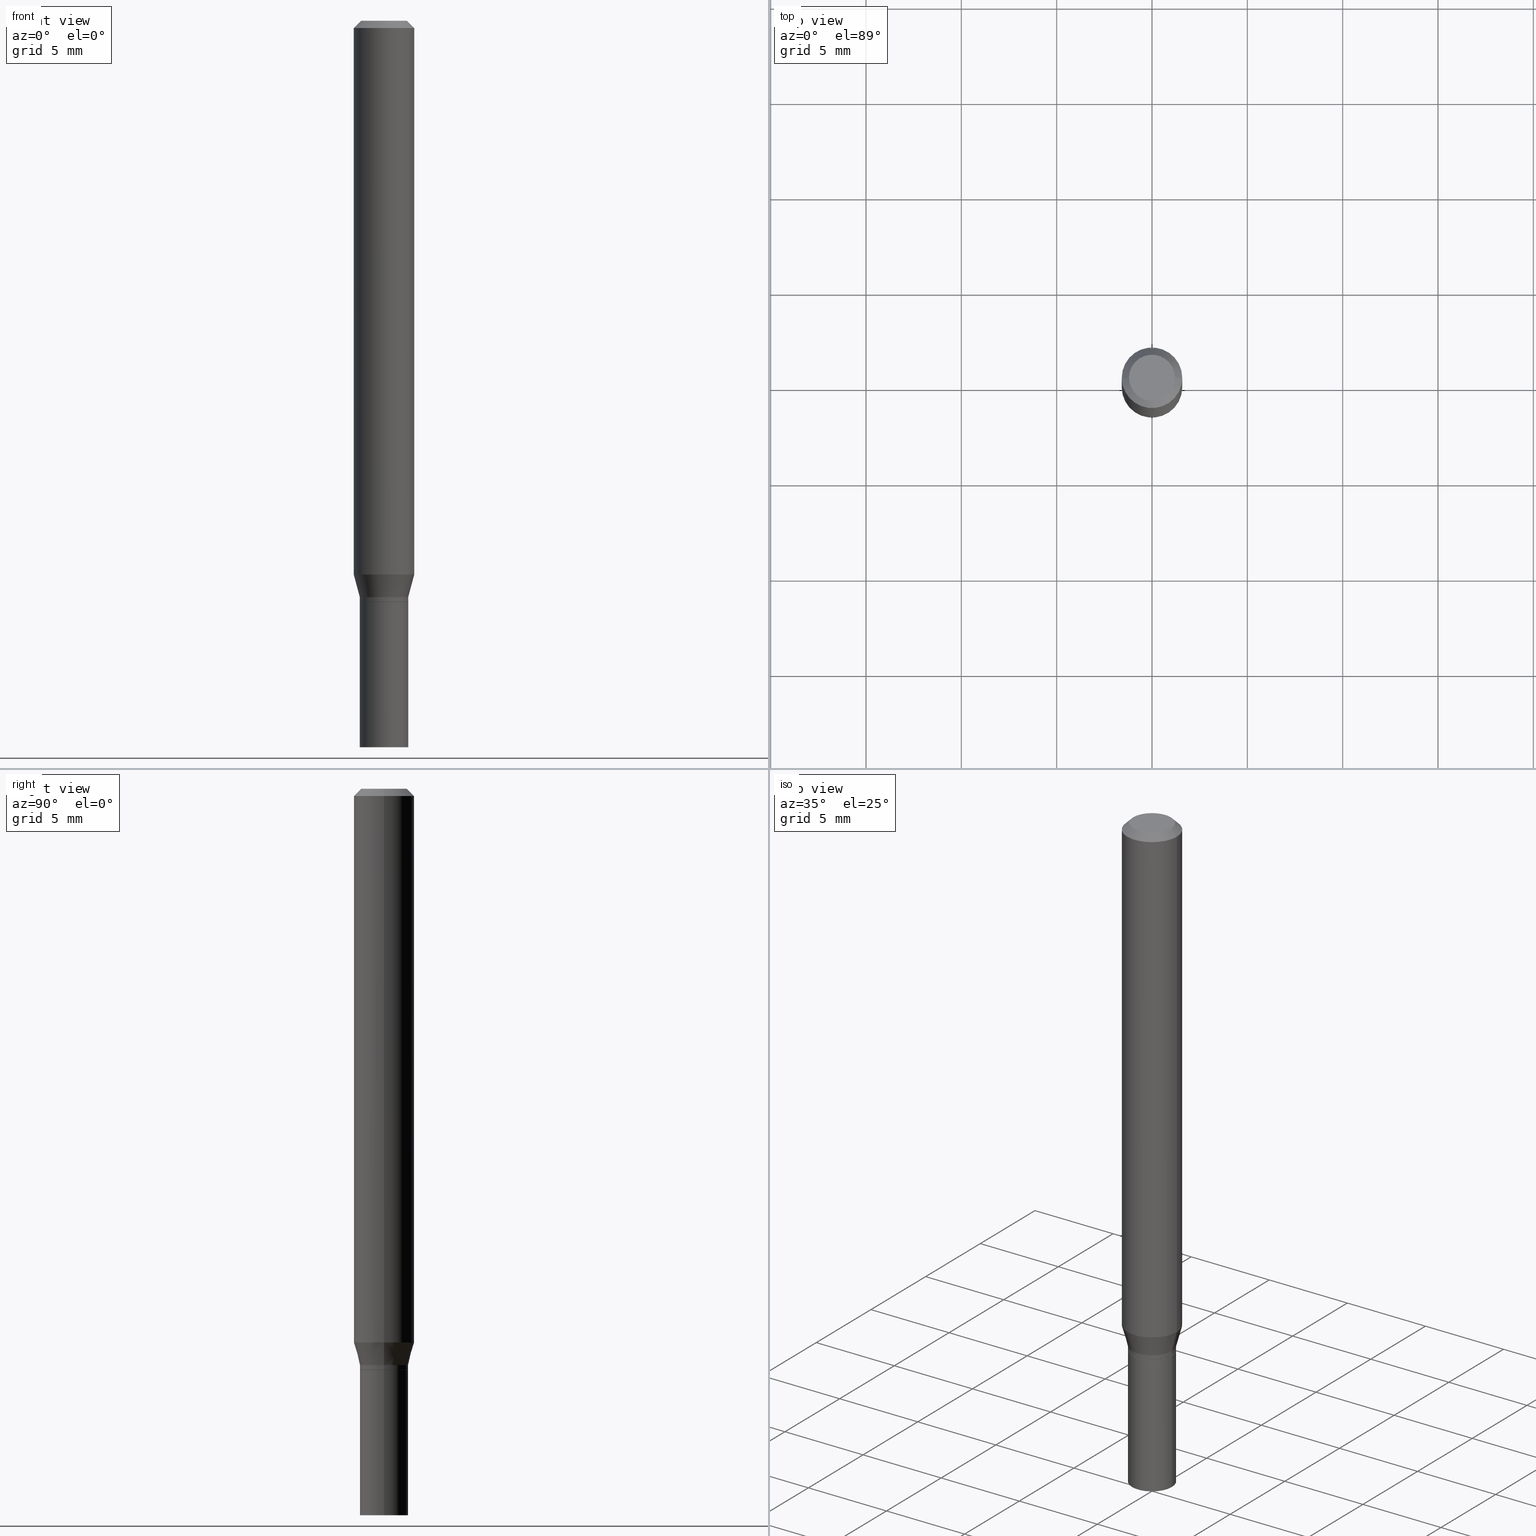
[diagram: canonical four-view strip — front | top / right | iso, engineering-drawing reading convention]
A machine part, canonical four-view strip (front | top / right | iso — engineering-drawing reading convention). The complete STEP part file that produces these views, byte-faithful:
ISO-10303-21;
HEADER;
FILE_DESCRIPTION (( 'STEP AP203' ),
    '1' );
FILE_NAME ('02465.STEP',
    '2024-03-18T20:45:37',
    ( '' ),
    ( '' ),
    'SwSTEP 2.0',
    'SolidWorks 2023',
    '' );
FILE_SCHEMA (( 'CONFIG_CONTROL_DESIGN' ));
ENDSEC;

DATA;
#1 = LOCAL_TIME ( 16, 45, 37.00000000000000000, #456 ) ;
#2 = PERSON_AND_ORGANIZATION ( #294, #120 ) ;
#3 = UNCERTAINTY_MEASURE_WITH_UNIT (LENGTH_MEASURE( 1.000000000000000082E-05 ), #350, 'distance_accuracy_value', 'NONE');
#4 = DIRECTION ( 'NONE',  ( -2.445468806185136597E-29, 3.491481338843145583E-15, 1.000000000000000000 ) ) ;
#5 = APPLICATION_CONTEXT ( 'configuration controlled 3d designs of mechanical parts and assemblies' ) ;
#6 = DIRECTION ( 'NONE',  ( 1.000000000000000000, -6.982962677686266711E-15, 0.000000000000000000 ) ) ;
#7 = PRODUCT_DEFINITION ( 'UNKNOWN', '', #165, #320 ) ;
#8 = CARTESIAN_POINT ( 'NONE',  ( -0.05000000000000005829, -3.799591425343292957E-15, -1.190000000000000169 ) ) ;
#9 = AXIS2_PLACEMENT_3D ( 'NONE', #137, #461, #353 ) ;
#10 = PLANE ( 'NONE',  #359 ) ;
#11 = EDGE_CURVE ( 'NONE', #435, #424, #64, .T. ) ;
#12 = DIRECTION ( 'NONE',  ( 2.445468806185136597E-29, -3.491481338843145583E-15, -1.000000000000000000 ) ) ;
#13 = ORIENTED_EDGE ( 'NONE', *, *, #277, .F. ) ;
#14 = CARTESIAN_POINT ( 'NONE',  ( -0.05000000000000000278, 3.552713678800501127E-16, -2.459467545127453311E-30 ) ) ;
#15 = VERTEX_POINT ( 'NONE', #168 ) ;
#16 = AXIS2_PLACEMENT_3D ( 'NONE', #216, #361, #289 ) ;
#17 = DIRECTION ( 'NONE',  ( 1.000000000000000000, -6.982962677686266711E-15, 0.000000000000000000 ) ) ;
#18 = AXIS2_PLACEMENT_3D ( 'NONE', #201, #298, #299 ) ;
#19 = EDGE_LOOP ( 'NONE', ( #393, #374, #86, #264 ) ) ;
#20 = DIRECTION ( 'NONE',  ( -1.000000000000000000, 6.982962677686265922E-15, -4.876176775795935793E-29 ) ) ;
#21 = CC_DESIGN_DATE_AND_TIME_ASSIGNMENT ( #161, #308, ( #7 ) ) ;
#22 = ORIENTED_EDGE ( 'NONE', *, *, #91, .F. ) ;
#23 = CALENDAR_DATE ( 2024, 18, 3 ) ;
#24 = FACE_OUTER_BOUND ( 'NONE', #349, .T. ) ;
#25 = ORIENTED_EDGE ( 'NONE', *, *, #214, .T. ) ;
#26 = CONICAL_SURFACE ( 'NONE', #303, 0.06250000000000000000, 0.7853981633974456145 ) ;
#27 = LOCAL_TIME ( 16, 45, 37.00000000000000000, #106 ) ;
#28 = ORIENTED_EDGE ( 'NONE', *, *, #377, .F. ) ;
#29 = EDGE_CURVE ( 'NONE', #155, #178, #462, .T. ) ;
#30 = PERSON_AND_ORGANIZATION ( #294, #120 ) ;
#31 = CARTESIAN_POINT ( 'NONE',  ( 0.04950000000000000233, -4.535434259157245343E-15, -1.200000000000000178 ) ) ;
#32 = APPLICATION_PROTOCOL_DEFINITION ( 'international standard', 'config_control_design', 1994, #263 ) ;
#33 = DIRECTION ( 'NONE',  ( 1.000000000000000000, -6.982962677686267499E-15, 4.884662768193073002E-29 ) ) ;
#34 = COORDINATED_UNIVERSAL_TIME_OFFSET ( 5, 0, .BEHIND. ) ;
#35 = DIRECTION ( 'NONE',  ( 1.000000000000000000, -6.982962677686270655E-15, 0.000000000000000000 ) ) ;
#36 = AXIS2_PLACEMENT_3D ( 'NONE', #121, #342, #17 ) ;
#37 = DIRECTION ( 'NONE',  ( -1.000000000000000000, 6.982962677686265922E-15, -4.876176775795935793E-29 ) ) ;
#38 = CYLINDRICAL_SURFACE ( 'NONE', #410, 0.06250000000000000000 ) ;
#39 = LINE ( 'NONE', #187, #53 ) ;
#40 = ADVANCED_FACE ( 'NONE', ( #62 ), #246, .F. ) ;
#41 = DIRECTION ( 'NONE',  ( -2.445468806185136597E-29, 3.491481338843145583E-15, 1.000000000000000000 ) ) ;
#42 = CC_DESIGN_PERSON_AND_ORGANIZATION_ASSIGNMENT ( #443, #143, ( #165 ) ) ;
#43 = FACE_OUTER_BOUND ( 'NONE', #309, .T. ) ;
#44 = EDGE_CURVE ( 'NONE', #152, #78, #46, .T. ) ;
#45 = DIRECTION ( 'NONE',  ( -2.438088387897960049E-29, 3.491481338843145188E-15, 1.000000000000000000 ) ) ;
#46 = CIRCLE ( 'NONE', #302, 0.06250000000000000000 ) ;
#47 = DIRECTION ( 'NONE',  ( 1.000000000000000000, -6.982962677686267499E-15, 4.876176775795936353E-29 ) ) ;
#48 = FACE_OUTER_BOUND ( 'NONE', #195, .T. ) ;
#49 = VERTEX_POINT ( 'NONE', #31 ) ;
#50 = CARTESIAN_POINT ( 'NONE',  ( 0.000000000000000000, 0.000000000000000000, 0.000000000000000000 ) ) ;
#51 = ORIENTED_EDGE ( 'NONE', *, *, #460, .T. ) ;
#52 = EDGE_CURVE ( 'NONE', #178, #155, #227, .T. ) ;
#53 = VECTOR ( 'NONE', #179, 39.37007874015748143 ) ;
#54 = PLANE ( 'NONE',  #72 ) ;
#55 = ORIENTED_EDGE ( 'NONE', *, *, #405, .F. ) ;
#56 = DIRECTION ( 'NONE',  ( -2.438088387897960049E-29, 3.491481338843145188E-15, 1.000000000000000000 ) ) ;
#57 = ORIENTED_EDGE ( 'NONE', *, *, #11, .F. ) ;
#58 = CC_DESIGN_PERSON_AND_ORGANIZATION_ASSIGNMENT ( #140, #286, ( #105 ) ) ;
#59 = APPLICATION_PROTOCOL_DEFINITION ( 'international standard', 'config_control_design', 1994, #5 ) ;
#60 = CARTESIAN_POINT ( 'NONE',  ( -2.107530995056288845E-45, 3.008995707351289501E-31, 8.618106228653878303E-17 ) ) ;
#61 =( GEOMETRIC_REPRESENTATION_CONTEXT ( 3 ) GLOBAL_UNCERTAINTY_ASSIGNED_CONTEXT ( ( #3 ) ) GLOBAL_UNIT_ASSIGNED_CONTEXT ( ( #350, #313, #392 ) ) REPRESENTATION_CONTEXT ( 'NONE', 'WORKASPACE' ) );
#62 = FACE_OUTER_BOUND ( 'NONE', #92, .T. ) ;
#63 = PERSON_AND_ORGANIZATION_ROLE ( 'creator' ) ;
#64 = LINE ( 'NONE', #134, #275 ) ;
#65 = CLOSED_SHELL ( 'NONE', ( #297, #341, #261, #241, #272, #124, #153, #348, #40, #84, #436, #191 ) ) ;
#66 = AXIS2_PLACEMENT_3D ( 'NONE', #279, #384, #163 ) ;
#67 = CARTESIAN_POINT ( 'NONE',  ( 2.910107879360313156E-29, -4.154862793223344154E-15, -1.190000000000000169 ) ) ;
#68 = CALENDAR_DATE ( 2024, 18, 3 ) ;
#69 = DIRECTION ( 'NONE',  ( 0.7071067811865454633, -7.319954787623246579E-15, -0.7071067811865493491 ) ) ;
#70 = EDGE_CURVE ( 'NONE', #97, #193, #401, .T. ) ;
#71 = FACE_OUTER_BOUND ( 'NONE', #176, .T. ) ;
#72 = AXIS2_PLACEMENT_3D ( 'NONE', #199, #345, #20 ) ;
#73 = MANIFOLD_SOLID_BREP ( 'Body-Move/Copy2[2]', #65 ) ;
#74 = APPROVAL_STATUS ( 'not_yet_approved' ) ;
#75 = CARTESIAN_POINT ( 'NONE',  ( -0.05000000000000005829, -3.673742593419279671E-15, -1.190000000000000169 ) ) ;
#76 = CARTESIAN_POINT ( 'NONE',  ( 0.000000000000000000, 0.000000000000000000, 0.000000000000000000 ) ) ;
#77 = CARTESIAN_POINT ( 'NONE',  ( -0.05000000000000000278, -4.358228439558196976E-15, -1.200000000000000178 ) ) ;
#78 = VERTEX_POINT ( 'NONE', #434 ) ;
#79 = AXIS2_PLACEMENT_3D ( 'NONE', #232, #116, #47 ) ;
#80 = DIRECTION ( 'NONE',  ( -2.445468806185136877E-29, 3.491481338843145188E-15, 1.000000000000000000 ) ) ;
#81 = ORIENTED_EDGE ( 'NONE', *, *, #11, .T. ) ;
#82 = DIRECTION ( 'NONE',  ( 1.000000000000000000, -6.982962677686266711E-15, 0.000000000000000000 ) ) ;
#83 = EDGE_LOOP ( 'NONE', ( #416, #340 ) ) ;
#84 = ADVANCED_FACE ( 'NONE', ( #138 ), #422, .F. ) ;
#85 = DIRECTION ( 'NONE',  ( 1.000000000000000000, -6.982962677686265922E-15, 4.876176775795935793E-29 ) ) ;
#86 = ORIENTED_EDGE ( 'NONE', *, *, #108, .F. ) ;
#87 = DIRECTION ( 'NONE',  ( -2.445468806185136597E-29, 3.491481338843145583E-15, 1.000000000000000000 ) ) ;
#88 = AXIS2_PLACEMENT_3D ( 'NONE', #141, #103, #252 ) ;
#89 = EDGE_LOOP ( 'NONE', ( #414, #278, #338, #285 ) ) ;
#90 = CARTESIAN_POINT ( 'NONE',  ( 0.05000000000000000278, -5.586370142149032301E-15, -1.500000000000000222 ) ) ;
#91 = EDGE_CURVE ( 'NONE', #78, #200, #39, .T. ) ;
#92 = EDGE_LOOP ( 'NONE', ( #360, #237 ) ) ;
#93 = DIRECTION ( 'NONE',  ( 0.7071067811865656694, -2.468850131082446387E-15, 0.7071067811865294761 ) ) ;
#94 = AXIS2_PLACEMENT_3D ( 'NONE', #173, #314, #325 ) ;
#95 = ORIENTED_EDGE ( 'NONE', *, *, #446, .F. ) ;
#96 = CIRCLE ( 'NONE', #114, 0.05000000000000000278 ) ;
#97 = VERTEX_POINT ( 'NONE', #331 ) ;
#98 = LINE ( 'NONE', #464, #142 ) ;
#99 = CC_DESIGN_PERSON_AND_ORGANIZATION_ASSIGNMENT ( #247, #63, ( #7 ) ) ;
#100 = DATE_AND_TIME ( #433, #336 ) ;
#101 = VERTEX_POINT ( 'NONE', #253 ) ;
#102 = SHAPE_DEFINITION_REPRESENTATION ( #177, #315 ) ;
#103 = DIRECTION ( 'NONE',  ( -2.445468806185136597E-29, 3.491481338843145583E-15, 1.000000000000000000 ) ) ;
#104 = VECTOR ( 'NONE', #451, 39.37007874015748143 ) ;
#105 = SECURITY_CLASSIFICATION ( '', '', #110 ) ;
#106 = COORDINATED_UNIVERSAL_TIME_OFFSET ( 5, 0, .BEHIND. ) ;
#107 = CARTESIAN_POINT ( 'NONE',  ( 2.934562567422164701E-29, -4.189777606611775804E-15, -1.200000000000000178 ) ) ;
#108 = EDGE_CURVE ( 'NONE', #78, #152, #429, .T. ) ;
#109 = CC_DESIGN_DATE_AND_TIME_ASSIGNMENT ( #254, #268, ( #105 ) ) ;
#110 = SECURITY_CLASSIFICATION_LEVEL ( 'unclassified' ) ;
#111 = FACE_OUTER_BOUND ( 'NONE', #221, .T. ) ;
#112 = DIRECTION ( 'NONE',  ( -2.445468806185136597E-29, 3.491481338843145583E-15, 1.000000000000000000 ) ) ;
#113 = CONICAL_SURFACE ( 'NONE', #365, 0.05000000000000005829, 0.2617993877991508511 ) ;
#114 = AXIS2_PLACEMENT_3D ( 'NONE', #125, #151, #225 ) ;
#115 = CARTESIAN_POINT ( 'NONE',  ( 0.000000000000000000, 0.000000000000000000, 0.000000000000000000 ) ) ;
#116 = DIRECTION ( 'NONE',  ( -2.445468806185136597E-29, 3.491481338843145583E-15, 1.000000000000000000 ) ) ;
#117 = LINE ( 'NONE', #14, #463 ) ;
#118 = EDGE_LOOP ( 'NONE', ( #208, #131, #126, #57 ) ) ;
#119 = CIRCLE ( 'NONE', #18, 0.04950000000000000233 ) ;
#120 = ORGANIZATION ( 'UNSPECIFIED', 'UNSPECIFIED', '' ) ;
#121 = CARTESIAN_POINT ( 'NONE',  ( 2.910107879360313156E-29, -4.154862793223344154E-15, -1.190000000000000169 ) ) ;
#122 = EDGE_CURVE ( 'NONE', #101, #15, #196, .T. ) ;
#123 = CARTESIAN_POINT ( 'NONE',  ( 3.668203209277705088E-31, -5.237222008264718399E-17, -0.01499999999999999944 ) ) ;
#124 = ADVANCED_FACE ( 'NONE', ( #43 ), #113, .T. ) ;
#125 = CARTESIAN_POINT ( 'NONE',  ( 2.934562567422164701E-29, -4.189777606611775804E-15, -1.200000000000000178 ) ) ;
#126 = ORIENTED_EDGE ( 'NONE', *, *, #220, .F. ) ;
#127 = ADVANCED_FACE ( 'NONE', ( #466 ), #185, .T. ) ;
#128 = AXIS2_PLACEMENT_3D ( 'NONE', #107, #45, #291 ) ;
#129 = CIRCLE ( 'NONE', #9, 0.05000000000000006523 ) ;
#130 = VECTOR ( 'NONE', #93, 39.37007874015748143 ) ;
#131 = ORIENTED_EDGE ( 'NONE', *, *, #327, .T. ) ;
#132 = ORIENTED_EDGE ( 'NONE', *, *, #214, .F. ) ;
#133 = PERSON_AND_ORGANIZATION_ROLE ( 'design_owner' ) ;
#134 = CARTESIAN_POINT ( 'NONE',  ( 0.05000000000000000278, -3.491481338843133848E-16, 2.438088387897968247E-30 ) ) ;
#135 = CARTESIAN_POINT ( 'NONE',  ( 3.668203209277704895E-29, -5.237222008264718177E-15, -1.500000000000000222 ) ) ;
#136 = AXIS2_PLACEMENT_3D ( 'NONE', #455, #273, #417 ) ;
#137 = CARTESIAN_POINT ( 'NONE',  ( 2.933339833019071899E-29, -4.188031865942353511E-15, -1.199500000000000233 ) ) ;
#138 = FACE_OUTER_BOUND ( 'NONE', #428, .T. ) ;
#139 = EDGE_CURVE ( 'NONE', #152, #355, #181, .T. ) ;
#140 = PERSON_AND_ORGANIZATION ( #294, #120 ) ;
#141 = CARTESIAN_POINT ( 'NONE',  ( 0.000000000000000000, 0.000000000000000000, 0.000000000000000000 ) ) ;
#142 = VECTOR ( 'NONE', #282, 39.37007874015748143 ) ;
#143 = PERSON_AND_ORGANIZATION_ROLE ( 'design_supplier' ) ;
#144 = DIRECTION ( 'NONE',  ( 1.000000000000000000, -6.982962677686267499E-15, 4.876176775795936353E-29 ) ) ;
#145 = COORDINATED_UNIVERSAL_TIME_OFFSET ( 5, 0, .BEHIND. ) ;
#146 = DIRECTION ( 'NONE',  ( -2.445468806185136597E-29, 3.491481338843145583E-15, 1.000000000000000000 ) ) ;
#147 = ORIENTED_EDGE ( 'NONE', *, *, #139, .F. ) ;
#148 = DIRECTION ( 'NONE',  ( -0.2588190451025220717, 5.211531920934554197E-15, 0.9659258262890678681 ) ) ;
#149 = VECTOR ( 'NONE', #421, 39.37007874015748143 ) ;
#150 = FACE_OUTER_BOUND ( 'NONE', #283, .T. ) ;
#151 = DIRECTION ( 'NONE',  ( -2.445468806185136597E-29, 3.491481338843145583E-15, 1.000000000000000000 ) ) ;
#152 = VERTEX_POINT ( 'NONE', #184 ) ;
#153 = ADVANCED_FACE ( 'NONE', ( #71 ), #38, .T. ) ;
#154 = DIRECTION ( 'NONE',  ( 2.445468806185136597E-29, -3.491481338843145583E-15, -1.000000000000000000 ) ) ;
#155 = VERTEX_POINT ( 'NONE', #369 ) ;
#156 = AXIS2_PLACEMENT_3D ( 'NONE', #210, #321, #465 ) ;
#157 = AXIS2_PLACEMENT_3D ( 'NONE', #159, #339, #347 ) ;
#158 = FACE_OUTER_BOUND ( 'NONE', #190, .T. ) ;
#159 = CARTESIAN_POINT ( 'NONE',  ( 3.668203209277705088E-31, -5.237222008264718399E-17, -0.01499999999999999944 ) ) ;
#160 = EDGE_LOOP ( 'NONE', ( #95, #242, #228, #28 ) ) ;
#161 = DATE_AND_TIME ( #23, #1 ) ;
#162 = ORIENTED_EDGE ( 'NONE', *, *, #167, .F. ) ;
#163 = DIRECTION ( 'NONE',  ( 1.000000000000000000, -6.982962677686264344E-15, 0.000000000000000000 ) ) ;
#164 = APPROVAL ( #74, 'UNSPECIFIED' ) ;
#165 = PRODUCT_DEFINITION_FORMATION_WITH_SPECIFIED_SOURCE ( 'ANY', '', #170, .NOT_KNOWN. ) ;
#166 = ORIENTED_EDGE ( 'NONE', *, *, #292, .T. ) ;
#167 = EDGE_CURVE ( 'NONE', #155, #355, #396, .T. ) ;
#168 = CARTESIAN_POINT ( 'NONE',  ( -0.05000000000000006523, -3.832760498062303103E-15, -1.199500000000000233 ) ) ;
#169 = ORIENTED_EDGE ( 'NONE', *, *, #449, .F. ) ;
#170 = PRODUCT ( '02465', '02465', '', ( #319 ) ) ;
#171 = EDGE_CURVE ( 'NONE', #435, #346, #387, .T. ) ;
#172 = PERSON_AND_ORGANIZATION ( #294, #120 ) ;
#173 = CARTESIAN_POINT ( 'NONE',  ( -2.107530995056288845E-45, 3.008995707351289501E-31, 8.618106228653878303E-17 ) ) ;
#174 = CIRCLE ( 'NONE', #157, 0.06250000000000000000 ) ;
#175 = AXIS2_PLACEMENT_3D ( 'NONE', #284, #240, #244 ) ;
#176 = EDGE_LOOP ( 'NONE', ( #147, #419, #454, #248 ) ) ;
#177 = PRODUCT_DEFINITION_SHAPE ( 'NONE', 'NONE',  #7 ) ;
#178 = VERTEX_POINT ( 'NONE', #438 ) ;
#179 = DIRECTION ( 'NONE',  ( -2.445468806185136877E-29, 3.491481338843145188E-15, 1.000000000000000000 ) ) ;
#180 = PERSON_AND_ORGANIZATION ( #294, #120 ) ;
#181 = LINE ( 'NONE', #400, #334 ) ;
#182 = CLOSED_SHELL ( 'NONE', ( #357, #256, #127, #397 ) ) ;
#183 = AXIS2_PLACEMENT_3D ( 'NONE', #76, #224, #370 ) ;
#184 = CARTESIAN_POINT ( 'NONE',  ( -0.06250000000000000000, -3.547893761495267568E-15, -1.143349364905389631 ) ) ;
#185 = CYLINDRICAL_SURFACE ( 'NONE', #418, 0.05000000000000000278 ) ;
#186 = APPROVAL ( #389, 'UNSPECIFIED' ) ;
#187 = CARTESIAN_POINT ( 'NONE',  ( 0.06250000000000000000, -4.364351673553916694E-16, 3.047610484872459871E-30 ) ) ;
#188 = AXIS2_PLACEMENT_3D ( 'NONE', #207, #390, #37 ) ;
#189 = FACE_OUTER_BOUND ( 'NONE', #19, .T. ) ;
#190 = EDGE_LOOP ( 'NONE', ( #376, #166 ) ) ;
#191 = ADVANCED_FACE ( 'NONE', ( #442 ), #403, .T. ) ;
#192 = DIRECTION ( 'NONE',  ( -1.000000000000000000, 6.982962677686266711E-15, 0.000000000000000000 ) ) ;
#193 = VERTEX_POINT ( 'NONE', #75 ) ;
#194 = FACE_OUTER_BOUND ( 'NONE', #118, .T. ) ;
#195 = EDGE_LOOP ( 'NONE', ( #267, #25, #271, #162 ) ) ;
#196 = CIRCLE ( 'NONE', #250, 0.05000000000000006523 ) ;
#197 = VECTOR ( 'NONE', #445, 39.37007874015748854 ) ;
#198 = CC_DESIGN_APPROVAL ( #164, ( #105 ) ) ;
#199 = CARTESIAN_POINT ( 'NONE',  ( 3.491481338843426713E-16, 0.04999999999999581168, -1.200000000000000400 ) ) ;
#200 = VERTEX_POINT ( 'NONE', #332 ) ;
#201 = CARTESIAN_POINT ( 'NONE',  ( 2.934562567422164701E-29, -4.189777606611775804E-15, -1.200000000000000178 ) ) ;
#202 = ORIENTED_EDGE ( 'NONE', *, *, #411, .T. ) ;
#203 = DIRECTION ( 'NONE',  ( -2.445468806185136597E-29, 3.491481338843145583E-15, 1.000000000000000000 ) ) ;
#204 = EDGE_LOOP ( 'NONE', ( #238, #202, #81, #304 ) ) ;
#205 = CONICAL_SURFACE ( 'NONE', #281, 0.06250000000000000000, 0.7853981633974456145 ) ;
#206 = DIRECTION ( 'NONE',  ( 1.000000000000000000, -6.982962677686274599E-15, 0.000000000000000000 ) ) ;
#207 = CARTESIAN_POINT ( 'NONE',  ( 3.316907271900976096E-16, 0.04749999999999999362, -1.227548324517800049E-16 ) ) ;
#208 = ORIENTED_EDGE ( 'NONE', *, *, #171, .T. ) ;
#209 = EDGE_CURVE ( 'NONE', #193, #152, #255, .T. ) ;
#210 = CARTESIAN_POINT ( 'NONE',  ( 2.910107879360313156E-29, -4.154862793223344154E-15, -1.190000000000000169 ) ) ;
#211 = APPROVAL_ROLE ( '' ) ;
#212 = ORIENTED_EDGE ( 'NONE', *, *, #405, .T. ) ;
#213 = APPROVAL_DATE_TIME ( #100, #186 ) ;
#214 = EDGE_CURVE ( 'NONE', #178, #200, #295, .T. ) ;
#215 = AXIS2_PLACEMENT_3D ( 'NONE', #217, #444, #329 ) ;
#216 = CARTESIAN_POINT ( 'NONE',  ( 2.796025206447717260E-29, -3.991982971345330579E-15, -1.143349364905389631 ) ) ;
#217 = CARTESIAN_POINT ( 'NONE',  ( 2.934562567422164701E-29, -4.189777606611775804E-15, -1.200000000000000178 ) ) ;
#218 = CARTESIAN_POINT ( 'NONE',  ( 2.933339833019071899E-29, -4.188031865942353511E-15, -1.199500000000000233 ) ) ;
#219 = LOCAL_TIME ( 16, 45, 37.00000000000000000, #145 ) ;
#220 = EDGE_CURVE ( 'NONE', #424, #344, #430, .T. ) ;
#221 = EDGE_LOOP ( 'NONE', ( #457, #234, #394, #22 ) ) ;
#222 = APPROVAL_DATE_TIME ( #290, #226 ) ;
#223 = DIRECTION ( 'NONE',  ( -2.445468806185136877E-29, 3.491481338843145188E-15, 1.000000000000000000 ) ) ;
#224 = DIRECTION ( 'NONE',  ( -2.445468806185136597E-29, 3.491481338843145583E-15, 1.000000000000000000 ) ) ;
#225 = DIRECTION ( 'NONE',  ( 1.000000000000000000, -6.982962677686274599E-15, 0.000000000000000000 ) ) ;
#226 = APPROVAL ( #324, 'UNSPECIFIED' ) ;
#227 = CIRCLE ( 'NONE', #94, 0.04749999999999999362 ) ;
#228 = ORIENTED_EDGE ( 'NONE', *, *, #427, .T. ) ;
#229 = CARTESIAN_POINT ( 'NONE',  ( -0.04950000000000000233, -3.838058952410526294E-15, -1.200000000000000178 ) ) ;
#230 = DIRECTION ( 'NONE',  ( -2.445468806185136597E-29, 3.491481338843145583E-15, 1.000000000000000000 ) ) ;
#231 = ORIENTED_EDGE ( 'NONE', *, *, #44, .F. ) ;
#232 = CARTESIAN_POINT ( 'NONE',  ( 0.000000000000000000, 0.000000000000000000, 0.000000000000000000 ) ) ;
#233 = DIMENSIONAL_EXPONENTS ( 1.000000000000000000, 0.000000000000000000, 0.000000000000000000, 0.000000000000000000, 0.000000000000000000, 0.000000000000000000, 0.000000000000000000 ) ;
#234 = ORIENTED_EDGE ( 'NONE', *, *, #139, .T. ) ;
#235 = AXIS2_PLACEMENT_3D ( 'NONE', #371, #407, #82 ) ;
#236 = CARTESIAN_POINT ( 'NONE',  ( -0.05000000000000000278, -4.358228439558196976E-15, -1.500000000000000222 ) ) ;
#237 = ORIENTED_EDGE ( 'NONE', *, *, #52, .T. ) ;
#238 = ORIENTED_EDGE ( 'NONE', *, *, #327, .F. ) ;
#239 = LENGTH_MEASURE_WITH_UNIT ( LENGTH_MEASURE( 0.02539999999999999897 ), #458 );
#240 = DIRECTION ( 'NONE',  ( 0.000000000000000000, 0.000000000000000000, 1.000000000000000000 ) ) ;
#241 = ADVANCED_FACE ( 'NONE', ( #111 ), #406, .T. ) ;
#242 = ORIENTED_EDGE ( 'NONE', *, *, #449, .T. ) ;
#243 = AXIS2_PLACEMENT_3D ( 'NONE', #123, #337, #375 ) ;
#244 = DIRECTION ( 'NONE',  ( 1.000000000000000000, 0.000000000000000000, 0.000000000000000000 ) ) ;
#245 = APPROVAL_PERSON_ORGANIZATION ( #180, #226, #399 ) ;
#246 = PLANE ( 'NONE',  #188 ) ;
#247 = PERSON_AND_ORGANIZATION ( #294, #120 ) ;
#248 = ORIENTED_EDGE ( 'NONE', *, *, #306, .F. ) ;
#249 = CALENDAR_DATE ( 2024, 18, 3 ) ;
#250 = AXIS2_PLACEMENT_3D ( 'NONE', #218, #4, #326 ) ;
#251 = CONICAL_SURFACE ( 'NONE', #235, 0.05000000000000005829, 0.2617993877991508511 ) ;
#252 = DIRECTION ( 'NONE',  ( 1.000000000000000000, -6.982962677686266711E-15, 4.876176775795935232E-29 ) ) ;
#253 = CARTESIAN_POINT ( 'NONE',  ( 0.05000000000000006523, -4.537179999826667636E-15, -1.199500000000000233 ) ) ;
#254 = DATE_AND_TIME ( #68, #420 ) ;
#255 = LINE ( 'NONE', #8, #318 ) ;
#256 = ADVANCED_FACE ( 'NONE', ( #333 ), #10, .F. ) ;
#257 = DIRECTION ( 'NONE',  ( 1.000000000000000000, -6.982962677686274599E-15, 0.000000000000000000 ) ) ;
#258 = VECTOR ( 'NONE', #450, 39.37007874015748854 ) ;
#259 = EDGE_CURVE ( 'NONE', #200, #355, #440, .T. ) ;
#260 = CARTESIAN_POINT ( 'NONE',  ( 0.06250000000000000000, -4.811533449433679005E-16, -0.01499999999999999944 ) ) ;
#261 = ADVANCED_FACE ( 'NONE', ( #48 ), #26, .T. ) ;
#262 = FACE_OUTER_BOUND ( 'NONE', #379, .T. ) ;
#263 = APPLICATION_CONTEXT ( 'configuration controlled 3d designs of mechanical parts and assemblies' ) ;
#264 = ORIENTED_EDGE ( 'NONE', *, *, #322, .F. ) ;
#265 = CARTESIAN_POINT ( 'NONE',  ( 2.934562567422164701E-29, -4.189777606611775804E-15, -1.200000000000000178 ) ) ;
#266 = CONICAL_SURFACE ( 'NONE', #66, 0.04950000000000000233, 0.7853981633974739252 ) ;
#267 = ORIENTED_EDGE ( 'NONE', *, *, #52, .F. ) ;
#268 = DATE_TIME_ROLE ( 'classification_date' ) ;
#269 = CARTESIAN_POINT ( 'NONE',  ( -0.04950000000000000233, -3.835409725236414304E-15, -1.200000000000000178 ) ) ;
#270 = CARTESIAN_POINT ( 'NONE',  ( 3.668203209277705088E-31, -5.237222008264718399E-17, -0.01499999999999999944 ) ) ;
#271 = ORIENTED_EDGE ( 'NONE', *, *, #259, .T. ) ;
#272 = ADVANCED_FACE ( 'NONE', ( #189 ), #251, .T. ) ;
#273 = DIRECTION ( 'NONE',  ( -2.445468806185136597E-29, 3.491481338843145583E-15, 1.000000000000000000 ) ) ;
#274 = ORIENTED_EDGE ( 'NONE', *, *, #70, .F. ) ;
#275 = VECTOR ( 'NONE', #386, 39.37007874015748143 ) ;
#276 = LINE ( 'NONE', #356, #149 ) ;
#277 = EDGE_CURVE ( 'NONE', #49, #367, #119, .T. ) ;
#278 = ORIENTED_EDGE ( 'NONE', *, *, #362, .T. ) ;
#279 = CARTESIAN_POINT ( 'NONE',  ( 2.934562567422164701E-29, -4.189777606611775804E-15, -1.200000000000000178 ) ) ;
#280 = DIRECTION ( 'NONE',  ( -2.445468806185136597E-29, 3.491481338843145583E-15, 1.000000000000000000 ) ) ;
#281 = AXIS2_PLACEMENT_3D ( 'NONE', #380, #154, #413 ) ;
#282 = DIRECTION ( 'NONE',  ( -2.445468806185136877E-29, 3.491481338843145188E-15, 1.000000000000000000 ) ) ;
#283 = EDGE_LOOP ( 'NONE', ( #132, #351, #425, #312 ) ) ;
#284 = CARTESIAN_POINT ( 'NONE',  ( 0.000000000000000000, 0.000000000000000000, 0.000000000000000000 ) ) ;
#285 = ORIENTED_EDGE ( 'NONE', *, *, #460, .F. ) ;
#286 = PERSON_AND_ORGANIZATION_ROLE ( 'classification_officer' ) ;
#287 = CARTESIAN_POINT ( 'NONE',  ( 3.576687321579069994E-29, -5.368277968210015545E-15, -1.500000000000000222 ) ) ;
#288 = CONICAL_SURFACE ( 'NONE', #381, 0.04950000000000000233, 0.7853981633974739252 ) ;
#289 = DIRECTION ( 'NONE',  ( 1.000000000000000000, -6.982962677686270655E-15, 0.000000000000000000 ) ) ;
#290 = DATE_AND_TIME ( #249, #219 ) ;
#291 = DIRECTION ( 'NONE',  ( 1.000000000000000000, -6.982962677686265922E-15, 4.876176775795935793E-29 ) ) ;
#292 = EDGE_CURVE ( 'NONE', #344, #424, #96, .T. ) ;
#293 = DIRECTION ( 'NONE',  ( 1.000000000000000000, -6.982962677686266711E-15, 4.876176775795935793E-29 ) ) ;
#294 = PERSON ( 'UNSPECIFIED', 'UNSPECIFIED', 'UNSPECIFIED', ('UNSPECIFIED'), ('UNSPECIFIED'), ('UNSPECIFIED') ) ;
#295 = LINE ( 'NONE', #260, #335 ) ;
#296 = CIRCLE ( 'NONE', #352, 0.05000000000000000278 ) ;
#297 = ADVANCED_FACE ( 'NONE', ( #262 ), #307, .T. ) ;
#298 = DIRECTION ( 'NONE',  ( -2.445468806185136597E-29, 3.491481338843145583E-15, 1.000000000000000000 ) ) ;
#299 = DIRECTION ( 'NONE',  ( 1.000000000000000000, -6.982962677686264344E-15, 0.000000000000000000 ) ) ;
#300 = ORIENTED_EDGE ( 'NONE', *, *, #362, .F. ) ;
#301 = CARTESIAN_POINT ( 'NONE',  ( -0.06250000000000000000, -1.578088385863926213E-15, -0.01499999999999999944 ) ) ;
#302 = AXIS2_PLACEMENT_3D ( 'NONE', #354, #358, #35 ) ;
#303 = AXIS2_PLACEMENT_3D ( 'NONE', #270, #12, #192 ) ;
#304 = ORIENTED_EDGE ( 'NONE', *, *, #292, .F. ) ;
#305 = FACE_OUTER_BOUND ( 'NONE', #89, .T. ) ;
#306 = EDGE_CURVE ( 'NONE', #355, #200, #174, .T. ) ;
#307 = CYLINDRICAL_SURFACE ( 'NONE', #402, 0.05000000000000006523 ) ;
#308 = DATE_TIME_ROLE ( 'creation_date' ) ;
#309 = EDGE_LOOP ( 'NONE', ( #459, #408, #317, #231 ) ) ;
#310 = CC_DESIGN_PERSON_AND_ORGANIZATION_ASSIGNMENT ( #30, #133, ( #170 ) ) ;
#311 = CC_DESIGN_APPROVAL ( #186, ( #7 ) ) ;
#312 = ORIENTED_EDGE ( 'NONE', *, *, #306, .T. ) ;
#313 =( NAMED_UNIT ( * ) PLANE_ANGLE_UNIT ( ) SI_UNIT ( $, .RADIAN. ) );
#314 = DIRECTION ( 'NONE',  ( -2.445468806185136597E-29, 3.491481338843145583E-15, 1.000000000000000000 ) ) ;
#315 = ADVANCED_BREP_SHAPE_REPRESENTATION ( '02465', ( #391, #73, #175 ), #61 ) ;
#316 = LINE ( 'NONE', #388, #130 ) ;
#317 = ORIENTED_EDGE ( 'NONE', *, *, #322, .T. ) ;
#318 = VECTOR ( 'NONE', #148, 39.37007874015748854 ) ;
#319 = MECHANICAL_CONTEXT ( 'NONE', #5, 'mechanical' ) ;
#320 = DESIGN_CONTEXT ( 'detailed design', #263, 'design' ) ;
#321 = DIRECTION ( 'NONE',  ( -2.445468806185136597E-29, 3.491481338843145583E-15, 1.000000000000000000 ) ) ;
#322 = EDGE_CURVE ( 'NONE', #97, #78, #378, .T. ) ;
#323 = CC_DESIGN_PERSON_AND_ORGANIZATION_ASSIGNMENT ( #2, #330, ( #165 ) ) ;
#324 = APPROVAL_STATUS ( 'not_yet_approved' ) ;
#325 = DIRECTION ( 'NONE',  ( 1.000000000000000000, -6.982962677686267499E-15, 4.884662768193073002E-29 ) ) ;
#326 = DIRECTION ( 'NONE',  ( 1.000000000000000000, -6.982962677686275388E-15, 0.000000000000000000 ) ) ;
#327 = EDGE_CURVE ( 'NONE', #346, #344, #117, .T. ) ;
#328 = APPROVAL_DATE_TIME ( #395, #164 ) ;
#329 = DIRECTION ( 'NONE',  ( 1.000000000000000000, -6.982962677686274599E-15, 0.000000000000000000 ) ) ;
#330 = PERSON_AND_ORGANIZATION_ROLE ( 'creator' ) ;
#331 = CARTESIAN_POINT ( 'NONE',  ( 0.05000000000000005829, -4.504010927107657490E-15, -1.190000000000000169 ) ) ;
#332 = CARTESIAN_POINT ( 'NONE',  ( 0.06250000000000000000, -4.888073874380388472E-16, -0.01499999999999999944 ) ) ;
#333 = FACE_OUTER_BOUND ( 'NONE', #83, .T. ) ;
#334 = VECTOR ( 'NONE', #223, 39.37007874015748143 ) ;
#335 = VECTOR ( 'NONE', #69, 39.37007874015748854 ) ;
#336 = LOCAL_TIME ( 16, 45, 37.00000000000000000, #34 ) ;
#337 = DIRECTION ( 'NONE',  ( -2.445468806185136597E-29, 3.491481338843145583E-15, 1.000000000000000000 ) ) ;
#338 = ORIENTED_EDGE ( 'NONE', *, *, #122, .F. ) ;
#339 = DIRECTION ( 'NONE',  ( -2.445468806185136597E-29, 3.491481338843145583E-15, 1.000000000000000000 ) ) ;
#340 = ORIENTED_EDGE ( 'NONE', *, *, #411, .F. ) ;
#341 = ADVANCED_FACE ( 'NONE', ( #305 ), #288, .T. ) ;
#342 = DIRECTION ( 'NONE',  ( -2.445468806185136597E-29, 3.491481338843145583E-15, 1.000000000000000000 ) ) ;
#343 = CIRCLE ( 'NONE', #136, 0.04950000000000000233 ) ;
#344 = VERTEX_POINT ( 'NONE', #77 ) ;
#345 = DIRECTION ( 'NONE',  ( 2.438088387897960049E-29, -3.491481338843145188E-15, -1.000000000000000000 ) ) ;
#346 = VERTEX_POINT ( 'NONE', #236 ) ;
#347 = DIRECTION ( 'NONE',  ( 1.000000000000000000, -6.982962677686266711E-15, 0.000000000000000000 ) ) ;
#348 = ADVANCED_FACE ( 'NONE', ( #150 ), #205, .T. ) ;
#349 = EDGE_LOOP ( 'NONE', ( #300, #212, #51, #169 ) ) ;
#350 =( CONVERSION_BASED_UNIT ( 'INCH', #239 ) LENGTH_UNIT ( ) NAMED_UNIT ( #233 ) );
#351 = ORIENTED_EDGE ( 'NONE', *, *, #29, .F. ) ;
#352 = AXIS2_PLACEMENT_3D ( 'NONE', #135, #203, #206 ) ;
#353 = DIRECTION ( 'NONE',  ( 1.000000000000000000, -6.982962677686275388E-15, 0.000000000000000000 ) ) ;
#354 = CARTESIAN_POINT ( 'NONE',  ( 2.796025206447717260E-29, -3.991982971345330579E-15, -1.143349364905389631 ) ) ;
#355 = VERTEX_POINT ( 'NONE', #301 ) ;
#356 = CARTESIAN_POINT ( 'NONE',  ( 0.05000000000000006523, -3.491481338843137793E-16, 2.438088387897970699E-30 ) ) ;
#357 = ADVANCED_FACE ( 'NONE', ( #194 ), #415, .T. ) ;
#358 = DIRECTION ( 'NONE',  ( -2.445468806185136597E-29, 3.491481338843145583E-15, 1.000000000000000000 ) ) ;
#359 = AXIS2_PLACEMENT_3D ( 'NONE', #287, #56, #85 ) ;
#360 = ORIENTED_EDGE ( 'NONE', *, *, #29, .T. ) ;
#361 = DIRECTION ( 'NONE',  ( -2.445468806185136597E-29, 3.491481338843145583E-15, 1.000000000000000000 ) ) ;
#362 = EDGE_CURVE ( 'NONE', #367, #15, #409, .T. ) ;
#363 = PERSON_AND_ORGANIZATION ( #294, #120 ) ;
#364 = CARTESIAN_POINT ( 'NONE',  ( -0.06250000000000000000, 3.840629472727444916E-16, -0.01499999999999999944 ) ) ;
#365 = AXIS2_PLACEMENT_3D ( 'NONE', #67, #366, #6 ) ;
#366 = DIRECTION ( 'NONE',  ( -2.445468806185136597E-29, 3.491481338843145583E-15, 1.000000000000000000 ) ) ;
#367 = VERTEX_POINT ( 'NONE', #269 ) ;
#368 = COORDINATED_UNIVERSAL_TIME_OFFSET ( 5, 0, .BEHIND. ) ;
#369 = CARTESIAN_POINT ( 'NONE',  ( -0.04749999999999999362, 3.578768372314211985E-16, 8.618106228653636715E-17 ) ) ;
#370 = DIRECTION ( 'NONE',  ( 1.000000000000000000, -6.982962677686266711E-15, 4.876176775795935793E-29 ) ) ;
#371 = CARTESIAN_POINT ( 'NONE',  ( 2.910107879360313156E-29, -4.154862793223344154E-15, -1.190000000000000169 ) ) ;
#372 = CIRCLE ( 'NONE', #36, 0.05000000000000005829 ) ;
#373 = CC_DESIGN_APPROVAL ( #226, ( #165 ) ) ;
#374 = ORIENTED_EDGE ( 'NONE', *, *, #209, .T. ) ;
#375 = DIRECTION ( 'NONE',  ( 1.000000000000000000, -6.982962677686266711E-15, 0.000000000000000000 ) ) ;
#376 = ORIENTED_EDGE ( 'NONE', *, *, #220, .T. ) ;
#377 = EDGE_CURVE ( 'NONE', #193, #97, #372, .T. ) ;
#378 = LINE ( 'NONE', #448, #258 ) ;
#379 = EDGE_LOOP ( 'NONE', ( #426, #383, #274, #432 ) ) ;
#380 = CARTESIAN_POINT ( 'NONE',  ( 3.668203209277705088E-31, -5.237222008264718399E-17, -0.01499999999999999944 ) ) ;
#381 = AXIS2_PLACEMENT_3D ( 'NONE', #265, #87, #453 ) ;
#382 = DIRECTION ( 'NONE',  ( 1.000000000000000000, -6.982962677686266711E-15, 4.876176775795935232E-29 ) ) ;
#383 = ORIENTED_EDGE ( 'NONE', *, *, #446, .T. ) ;
#384 = DIRECTION ( 'NONE',  ( -2.445468806185136597E-29, 3.491481338843145583E-15, 1.000000000000000000 ) ) ;
#385 = CARTESIAN_POINT ( 'NONE',  ( 0.05000000000000000278, -4.538925740496089139E-15, -1.200000000000000178 ) ) ;
#386 = DIRECTION ( 'NONE',  ( -2.445468806185136877E-29, 3.491481338843145188E-15, 1.000000000000000000 ) ) ;
#387 = CIRCLE ( 'NONE', #452, 0.05000000000000000278 ) ;
#388 = CARTESIAN_POINT ( 'NONE',  ( 0.04950000000000000233, -4.535434259157245343E-15, -1.200000000000000178 ) ) ;
#389 = APPROVAL_STATUS ( 'not_yet_approved' ) ;
#390 = DIRECTION ( 'NONE',  ( 2.438088387897960049E-29, -3.491481338843145188E-15, -1.000000000000000000 ) ) ;
#391 = MANIFOLD_SOLID_BREP ( 'Body-Move/Copy2[1]', #182 ) ;
#392 =( NAMED_UNIT ( * ) SI_UNIT ( $, .STERADIAN. ) SOLID_ANGLE_UNIT ( ) );
#393 = ORIENTED_EDGE ( 'NONE', *, *, #70, .T. ) ;
#394 = ORIENTED_EDGE ( 'NONE', *, *, #259, .F. ) ;
#395 = DATE_AND_TIME ( #412, #27 ) ;
#396 = LINE ( 'NONE', #364, #197 ) ;
#397 = ADVANCED_FACE ( 'NONE', ( #158 ), #54, .F. ) ;
#398 = CARTESIAN_POINT ( 'NONE',  ( 3.668203209277704895E-29, -5.237222008264718177E-15, -1.500000000000000222 ) ) ;
#399 = APPROVAL_ROLE ( '' ) ;
#400 = CARTESIAN_POINT ( 'NONE',  ( -0.06250000000000000000, 4.440892098500626162E-16, -3.074334431409316114E-30 ) ) ;
#401 = CIRCLE ( 'NONE', #156, 0.05000000000000005829 ) ;
#402 = AXIS2_PLACEMENT_3D ( 'NONE', #50, #230, #382 ) ;
#403 = CYLINDRICAL_SURFACE ( 'NONE', #88, 0.05000000000000006523 ) ;
#404 = APPROVAL_PERSON_ORGANIZATION ( #363, #164, #437 ) ;
#405 = EDGE_CURVE ( 'NONE', #367, #49, #343, .T. ) ;
#406 = CYLINDRICAL_SURFACE ( 'NONE', #183, 0.06250000000000000000 ) ;
#407 = DIRECTION ( 'NONE',  ( -2.445468806185136597E-29, 3.491481338843145583E-15, 1.000000000000000000 ) ) ;
#408 = ORIENTED_EDGE ( 'NONE', *, *, #377, .T. ) ;
#409 = LINE ( 'NONE', #229, #104 ) ;
#410 = AXIS2_PLACEMENT_3D ( 'NONE', #115, #146, #293 ) ;
#411 = EDGE_CURVE ( 'NONE', #346, #435, #296, .T. ) ;
#412 = CALENDAR_DATE ( 2024, 18, 3 ) ;
#413 = DIRECTION ( 'NONE',  ( -1.000000000000000000, 6.982962677686266711E-15, 0.000000000000000000 ) ) ;
#414 = ORIENTED_EDGE ( 'NONE', *, *, #277, .T. ) ;
#415 = CYLINDRICAL_SURFACE ( 'NONE', #79, 0.05000000000000000278 ) ;
#416 = ORIENTED_EDGE ( 'NONE', *, *, #171, .F. ) ;
#417 = DIRECTION ( 'NONE',  ( 1.000000000000000000, -6.982962677686264344E-15, 0.000000000000000000 ) ) ;
#418 = AXIS2_PLACEMENT_3D ( 'NONE', #447, #41, #144 ) ;
#419 = ORIENTED_EDGE ( 'NONE', *, *, #44, .T. ) ;
#420 = LOCAL_TIME ( 16, 45, 37.00000000000000000, #368 ) ;
#421 = DIRECTION ( 'NONE',  ( -2.445468806185136877E-29, 3.491481338843145188E-15, 1.000000000000000000 ) ) ;
#422 = PLANE ( 'NONE',  #128 ) ;
#423 = PRODUCT_RELATED_PRODUCT_CATEGORY ( 'detail', '', ( #170 ) ) ;
#424 = VERTEX_POINT ( 'NONE', #385 ) ;
#425 = ORIENTED_EDGE ( 'NONE', *, *, #167, .T. ) ;
#426 = ORIENTED_EDGE ( 'NONE', *, *, #122, .T. ) ;
#427 = EDGE_CURVE ( 'NONE', #101, #97, #276, .T. ) ;
#428 = EDGE_LOOP ( 'NONE', ( #13, #55 ) ) ;
#429 = CIRCLE ( 'NONE', #16, 0.06250000000000000000 ) ;
#430 = CIRCLE ( 'NONE', #215, 0.05000000000000000278 ) ;
#431 = APPROVAL_PERSON_ORGANIZATION ( #172, #186, #211 ) ;
#432 = ORIENTED_EDGE ( 'NONE', *, *, #427, .F. ) ;
#433 = CALENDAR_DATE ( 2024, 18, 3 ) ;
#434 = CARTESIAN_POINT ( 'NONE',  ( 0.06250000000000000000, -4.428418138700722248E-15, -1.143349364905389631 ) ) ;
#435 = VERTEX_POINT ( 'NONE', #90 ) ;
#436 = ADVANCED_FACE ( 'NONE', ( #24 ), #266, .T. ) ;
#437 = APPROVAL_ROLE ( '' ) ;
#438 = CARTESIAN_POINT ( 'NONE',  ( 0.04749999999999999362, -4.035134999187576651E-16, 8.618106228654135916E-17 ) ) ;
#439 = AXIS2_PLACEMENT_3D ( 'NONE', #60, #280, #33 ) ;
#440 = CIRCLE ( 'NONE', #243, 0.06250000000000000000 ) ;
#441 = CC_DESIGN_SECURITY_CLASSIFICATION ( #105, ( #165 ) ) ;
#442 = FACE_OUTER_BOUND ( 'NONE', #160, .T. ) ;
#443 = PERSON_AND_ORGANIZATION ( #294, #120 ) ;
#444 = DIRECTION ( 'NONE',  ( -2.445468806185136597E-29, 3.491481338843145583E-15, 1.000000000000000000 ) ) ;
#445 = DIRECTION ( 'NONE',  ( -0.7071067811865454633, 2.468850131082235761E-15, -0.7071067811865493491 ) ) ;
#446 = EDGE_CURVE ( 'NONE', #15, #193, #98, .T. ) ;
#447 = CARTESIAN_POINT ( 'NONE',  ( 0.000000000000000000, 0.000000000000000000, 0.000000000000000000 ) ) ;
#448 = CARTESIAN_POINT ( 'NONE',  ( 0.05000000000000005829, -4.504010927107657490E-15, -1.190000000000000169 ) ) ;
#449 = EDGE_CURVE ( 'NONE', #15, #101, #129, .T. ) ;
#450 = DIRECTION ( 'NONE',  ( 0.2588190451025220717, 1.565188264969615854E-15, 0.9659258262890678681 ) ) ;
#451 = DIRECTION ( 'NONE',  ( -0.7071067811865656694, 7.493145998870420424E-15, 0.7071067811865294761 ) ) ;
#452 = AXIS2_PLACEMENT_3D ( 'NONE', #398, #112, #257 ) ;
#453 = DIRECTION ( 'NONE',  ( 1.000000000000000000, -6.982962677686264344E-15, 0.000000000000000000 ) ) ;
#454 = ORIENTED_EDGE ( 'NONE', *, *, #91, .T. ) ;
#455 = CARTESIAN_POINT ( 'NONE',  ( 2.934562567422164701E-29, -4.189777606611775804E-15, -1.200000000000000178 ) ) ;
#456 = COORDINATED_UNIVERSAL_TIME_OFFSET ( 5, 0, .BEHIND. ) ;
#457 = ORIENTED_EDGE ( 'NONE', *, *, #108, .T. ) ;
#458 =( LENGTH_UNIT ( ) NAMED_UNIT ( * ) SI_UNIT ( $, .METRE. ) );
#459 = ORIENTED_EDGE ( 'NONE', *, *, #209, .F. ) ;
#460 = EDGE_CURVE ( 'NONE', #49, #101, #316, .T. ) ;
#461 = DIRECTION ( 'NONE',  ( -2.445468806185136597E-29, 3.491481338843145583E-15, 1.000000000000000000 ) ) ;
#462 = CIRCLE ( 'NONE', #439, 0.04749999999999999362 ) ;
#463 = VECTOR ( 'NONE', #80, 39.37007874015748143 ) ;
#464 = CARTESIAN_POINT ( 'NONE',  ( -0.05000000000000006523, 3.552713678800505564E-16, -2.459467545127455764E-30 ) ) ;
#465 = DIRECTION ( 'NONE',  ( 1.000000000000000000, -6.982962677686266711E-15, 0.000000000000000000 ) ) ;
#466 = FACE_OUTER_BOUND ( 'NONE', #204, .T. ) ;
ENDSEC;
END-ISO-10303-21;
